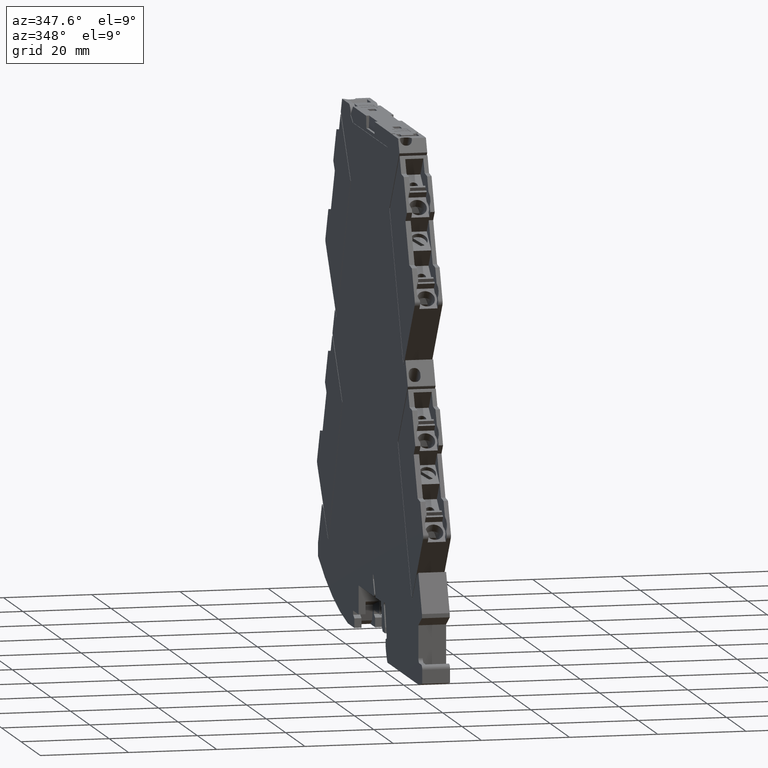
[diagram: clean part render]
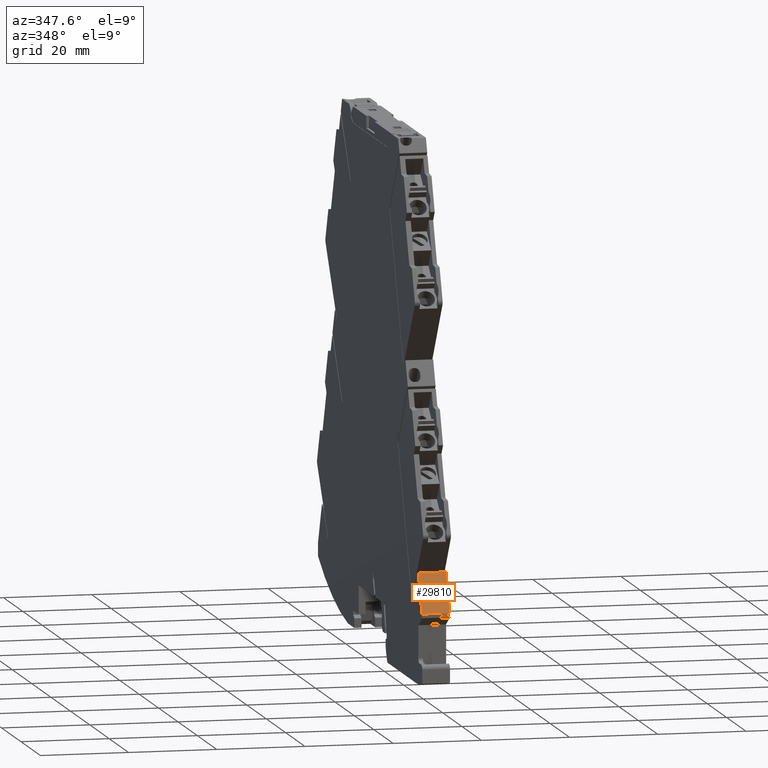
[diagram: same view with one face highlighted and labeled with its STEP entity id]
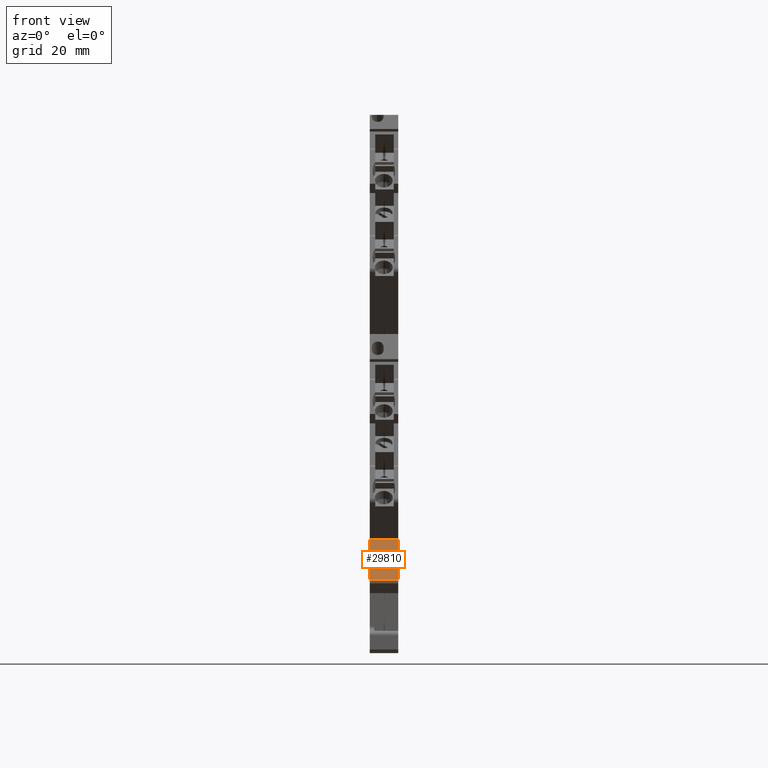
[diagram: same view with one face highlighted and labeled with its STEP entity id]
A machine part, auxiliary view. The second image highlights one B-rep face of the part: STEP entity #29810.
A second angle (front view) of the same face is appended — the face is thin or edge-on in the first view.
In plain terms, the highlighted planar face has unit normal (0, 0.9171, -0.3987).
Its self-contained STEP definition (entity closure, byte-faithful):
#1650=CARTESIAN_POINT('',(-33.7154625217472,16.0525317115858,
-14.6999999999701));
#1660=VERTEX_POINT('',#1650);
#1690=CARTESIAN_POINT('',(-40.6953019802847,6.83283161587036E-16,
-14.700000000032));
#1700=DIRECTION('',(0.398749069928776,0.917060073948777,
3.5381005884174E-12));
#1710=VECTOR('',#1700,1.);
#1720=LINE('',#1690,#1710);
#1730=CARTESIAN_POINT('',(-37.4826881751927,7.38850589467894,
-14.7000000000035));
#1740=VERTEX_POINT('',#1730);
#1750=EDGE_CURVE('',#1740,#1660,#1720,.T.);
#6680=CARTESIAN_POINT('',(-37.4826881752486,7.38850589467896,
-8.40000000027652));
#6690=VERTEX_POINT('',#6680);
#6720=CARTESIAN_POINT('',(-47.5435969064633,-15.7499999999871,
-8.4000000003657));
#6730=DIRECTION('',(-0.398749069928776,-0.917060073948777,
-3.53454010863057E-12));
#6740=VECTOR('',#6730,1.);
#6750=LINE('',#6720,#6740);
#6760=CARTESIAN_POINT('',(-33.7154625218031,16.0525317115858,
-8.40000000024313));
#6770=VERTEX_POINT('',#6760);
#6780=EDGE_CURVE('',#6770,#6690,#6750,.T.);
#29480=CARTESIAN_POINT('',(-37.4826881753241,7.38850589467902,
0.100000000003068));
#29490=DIRECTION('',(8.87912561076062E-12,-6.54588571843695E-15,-1.));
#29500=VECTOR('',#29490,1.);
#29510=LINE('',#29480,#29500);
#29520=EDGE_CURVE('',#6690,#1740,#29510,.T.);
#29650=CARTESIAN_POINT('',(-37.3831602639872,7.61740441895073,
-8.40000000027564));
#29660=DIRECTION('',(0.917060073948777,-0.398749069928776,
8.1453017550467E-12));
#29670=DIRECTION('',(-0.398749069928776,-0.917060073948777,
-3.53454010863057E-12));
#29680=AXIS2_PLACEMENT_3D('',#29650,#29660,#29670);
#29690=PLANE('',#29680);
#29700=ORIENTED_EDGE('',*,*,#6780,.F.);
#29710=ORIENTED_EDGE('',*,*,#29520,.F.);
#29720=ORIENTED_EDGE('',*,*,#1750,.F.);
#29730=CARTESIAN_POINT('',(-33.7154625218786,16.0525317115858,
0.10000000003619));
#29740=DIRECTION('',(-8.87912561076062E-12,6.5458857184369E-15,1.));
#29750=VECTOR('',#29740,1.);
#29760=LINE('',#29730,#29750);
#29770=EDGE_CURVE('',#1660,#6770,#29760,.T.);
#29780=ORIENTED_EDGE('',*,*,#29770,.F.);
#29790=EDGE_LOOP('',(#29780,#29720,#29710,#29700));
#29800=FACE_OUTER_BOUND('',#29790,.T.);
#29810=ADVANCED_FACE('',(#29800),#29690,.F.);